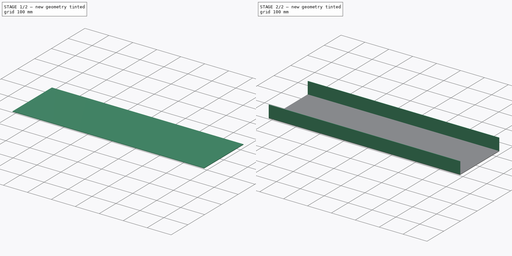
[diagram: build sequence overview — one tinted view per stage of 2, left to right]
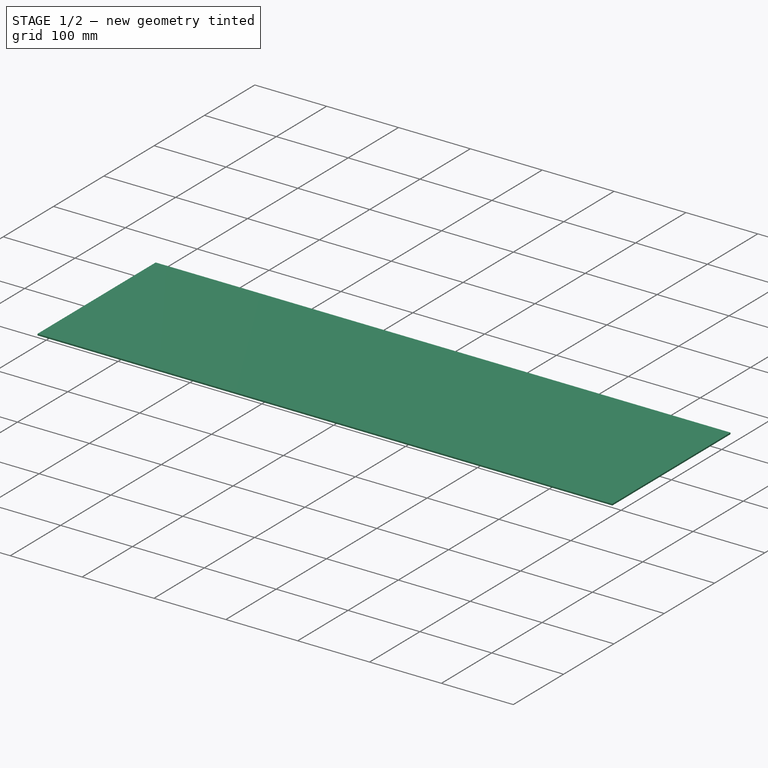
[diagram: stage 1 of 2 — iso view after this stage's code; geometry added in this stage tinted green]
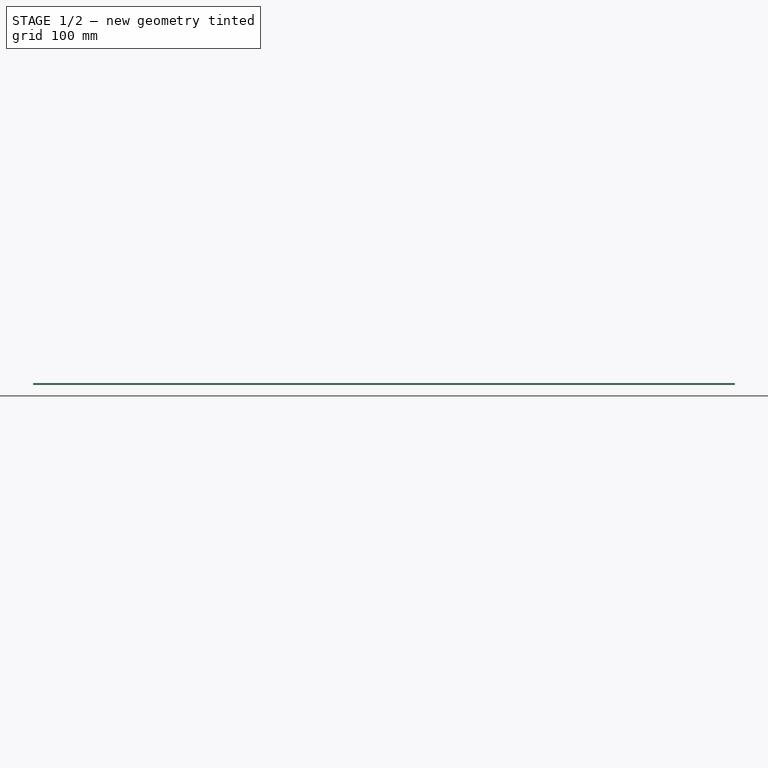
[diagram: stage 1 of 2 — front view after this stage's code; geometry added in this stage tinted green]
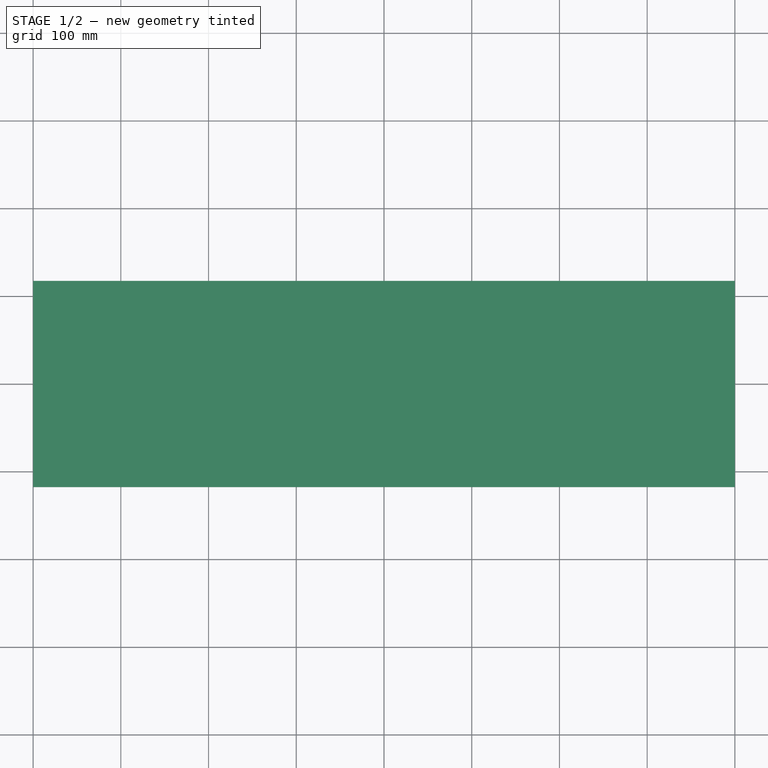
[diagram: stage 1 of 2 — top view after this stage's code; geometry added in this stage tinted green]
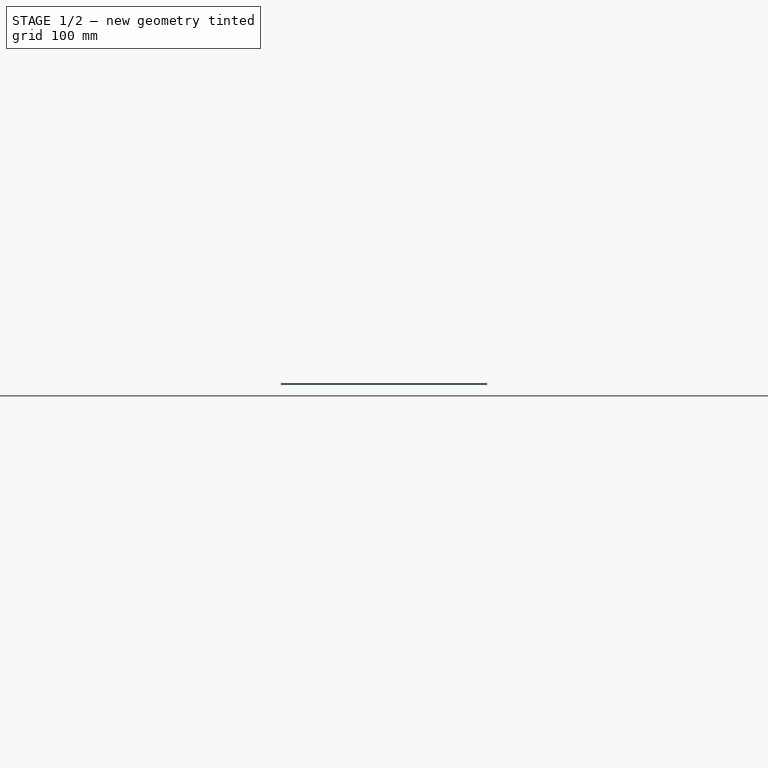
[diagram: stage 1 of 2 — right view after this stage's code; geometry added in this stage tinted green]
FCSTD DOCUMENT  (FreeCAD 0.20R29410 (Git))
Label: sling
License: All rights reserved
LicenseURL: http://en.wikipedia.org/wiki/All_rights_reserved
objects: Sketcher::SketchObject×2, PartDesign::Pad×2, PartDesign::Body×1
note: 7 computed .brp shape members not serialized (recipe doc carries the construction recipe); baked Part::Feature solids carry a one-line shape summary decoded from their .brp

FEATURE [Sketcher::SketchObject] Sketch
  FullyConstrained = true
  MapMode = 5
  Support = -> [XY_Plane]
  sketch-geometry (38):
    g0: LineSegment StartX=610 StartY=-487.5 StartZ=0 EndX=610 EndY=272.5 EndZ=0
    g1: LineSegment StartX=610 StartY=272.5 StartZ=0 EndX=-610 EndY=272.5 EndZ=0
    g2: LineSegment StartX=-610 StartY=272.5 StartZ=0 EndX=-610 EndY=-487.5 EndZ=0
    g3: LineSegment StartX=-610 StartY=-487.5 StartZ=0 EndX=610 EndY=-487.5 EndZ=0
    g4: GeomPoint X=0 Y=0 Z=0
    g5: LineSegment StartX=-550 StartY=67.5 StartZ=0 EndX=550 EndY=67.5 EndZ=0
    g6: LineSegment StartX=550 StartY=67.5 StartZ=0 EndX=550 EndY=-67.5 EndZ=0
    g7: LineSegment StartX=550 StartY=-67.5 StartZ=0 EndX=-550 EndY=-67.5 EndZ=0
    g8: LineSegment StartX=-550 StartY=-67.5 StartZ=0 EndX=-550 EndY=67.5 EndZ=0
    g9: GeomPoint X=0 Y=272.5 Z=0
    g10: LineSegment StartX=-400 StartY=117.5 StartZ=0 EndX=400 EndY=117.5 EndZ=0
    g11: LineSegment StartX=400 StartY=117.5 StartZ=0 EndX=400 EndY=-117.5 EndZ=0
    g12: LineSegment StartX=400 StartY=-117.5 StartZ=0 EndX=-400 EndY=-117.5 EndZ=0
    g13: LineSegment StartX=-400 StartY=-117.5 StartZ=0 EndX=-400 EndY=117.5 EndZ=0
    g14: LineSegment StartX=-400 StartY=-117.5 StartZ=0 EndX=400 EndY=-117.5 EndZ=0
    g15: LineSegment StartX=400 StartY=-117.5 StartZ=0 EndX=400 EndY=-167.5 EndZ=0
    g16: LineSegment StartX=400 StartY=-167.5 StartZ=0 EndX=-400 EndY=-167.5 EndZ=0
    g17: LineSegment StartX=-400 StartY=-167.5 StartZ=0 EndX=-400 EndY=-117.5 EndZ=0
    g18: LineSegment StartX=-400 StartY=167.5 StartZ=0 EndX=400 EndY=167.5 EndZ=0
    g19: LineSegment StartX=400 StartY=167.5 StartZ=0 EndX=400 EndY=117.5 EndZ=0
    g20: LineSegment StartX=400 StartY=117.5 StartZ=0 EndX=-400 EndY=117.5 EndZ=0
    g21: LineSegment StartX=-400 StartY=117.5 StartZ=0 EndX=-400 EndY=167.5 EndZ=0
    g22: LineSegment StartX=-400 StartY=-167.5 StartZ=0 EndX=400 EndY=-167.5 EndZ=0
    g23: LineSegment StartX=400 StartY=-167.5 StartZ=0 EndX=400 EndY=-192.5 EndZ=0
    g24: LineSegment StartX=400 StartY=-192.5 StartZ=0 EndX=-400 EndY=-192.5 EndZ=0
    g25: LineSegment StartX=-400 StartY=-192.5 StartZ=0 EndX=-400 EndY=-167.5 EndZ=0
    g26: LineSegment StartX=-400 StartY=192.5 StartZ=0 EndX=400 EndY=192.5 EndZ=0
    g27: LineSegment StartX=400 StartY=192.5 StartZ=0 EndX=400 EndY=167.5 EndZ=0
    g28: LineSegment StartX=400 StartY=167.5 StartZ=0 EndX=-400 EndY=167.5 EndZ=0
    g29: LineSegment StartX=-400 StartY=167.5 StartZ=0 EndX=-400 EndY=192.5 EndZ=0
    g30: LineSegment StartX=-412 StartY=192.5 StartZ=0 EndX=-400 EndY=192.5 EndZ=0
    g31: LineSegment StartX=-400 StartY=192.5 StartZ=0 EndX=-400 EndY=-192.5 EndZ=0
    g32: LineSegment StartX=-400 StartY=-192.5 StartZ=0 EndX=-412 EndY=-192.5 EndZ=0
    g33: LineSegment StartX=-412 StartY=-192.5 StartZ=0 EndX=-412 EndY=192.5 EndZ=0
    g34: LineSegment StartX=400 StartY=192.5 StartZ=0 EndX=412 EndY=192.5 EndZ=0
    g35: LineSegment StartX=412 StartY=192.5 StartZ=0 EndX=412 EndY=-192.5 EndZ=0
    g36: LineSegment StartX=412 StartY=-192.5 StartZ=0 EndX=400 EndY=-192.5 EndZ=0
    g37: LineSegment StartX=400 StartY=-192.5 StartZ=0 EndX=400 EndY=192.5 EndZ=0
  constraints (109):
    c: Coincident(g0,g1)
    c: Coincident(g1,g2)
    c: Coincident(g2,g3)
    c: Coincident(g3,g0)
    c: Horizontal(g1)
    c: Horizontal(g3)
    c: Vertical(g0)
    c: Vertical(g2)
    c: Coincident(g4,g-1)
    c: DistanceX(g1,g1) = 1220
    c: DistanceY(g2,g2) = 760
    c: Coincident(g5,g6)
    c: Coincident(g6,g7)
    c: Coincident(g7,g8)
    c: Coincident(g8,g5)
    c: Horizontal(g5)
    c: Horizontal(g7)
    c: Vertical(g6)
    c: Vertical(g8)
    c: DistanceY(g5,g1) = 205
    c: DistanceY(g8,g8) = 135
    c: DistanceX(g5,g5) = 1100
    c: Symmetric(g5,g6,g4)
    c: Symmetric(g1,g0,g9)
    c: Vertical(g9,g4)
    c: Coincident(g10,g11)
    c: Coincident(g11,g12)
    c: Coincident(g12,g13)
    c: Coincident(g13,g10)
    c: Horizontal(g10)
    c: Horizontal(g12)
    c: Vertical(g11)
    c: Vertical(g13)
    c: Symmetric(g12,g10,g4)
    c: DistanceY(g12,g7) = 50
    c: DistanceX(g5,g10) = 150
    c: DistanceX(g12,g11) = 800
    c: DistanceY(g11,g10) = 235
    c: Coincident(g14,g15)
    c: Coincident(g15,g16)
    c: Coincident(g16,g17)
    c: Coincident(g17,g14)
    c: Horizontal(g14)
    c: Horizontal(g16)
    c: Vertical(g15)
    c: Vertical(g17)
    c: Coincident(g14,g12)
    c: PointOnObject(g14,g11)
    c: DistanceY(g15,g11) = 50
    c: Coincident(g18,g19)
    c: Coincident(g19,g20)
    c: Coincident(g20,g21)
    c: Coincident(g21,g18)
    c: Horizontal(g18)
    c: Horizontal(g20)
    c: Vertical(g19)
    c: Vertical(g21)
    c: Equal(g19,g15)
    c: Coincident(g20,g10)
    c: PointOnObject(g19,g11)
    c: DistanceY(g19,g19) = 50
    c: Coincident(g22,g23)
    c: Coincident(g23,g24)
    c: Coincident(g24,g25)
    c: Coincident(g25,g22)
    c: Horizontal(g22)
    c: Horizontal(g24)
    c: Vertical(g23)
    c: Vertical(g25)
    c: Coincident(g22,g16)
    c: PointOnObject(g22,g15)
    c: DistanceY(g23,g15) = 25
    c: Coincident(g26,g27)
    c: Coincident(g27,g28)
    c: Coincident(g28,g29)
    c: Coincident(g29,g26)
    c: Horizontal(g26)
    c: Horizontal(g28)
    c: Vertical(g27)
    c: Vertical(g29)
    c: Coincident(g28,g18)
    c: PointOnObject(g27,g19)
    c: Equal(g27,g23)
    c: DistanceY(g27,g27) = 25
    c: DistanceY(g23,g26) = 385
    c: DistanceY(g10,g1) = 155
    c: Coincident(g30,g31)
    c: Coincident(g31,g32)
    c: Coincident(g32,g33)
    c: Coincident(g33,g30)
    c: Horizontal(g30)
    c: Horizontal(g32)
    c: Vertical(g31)
    c: Vertical(g33)
    c: Coincident(g30,g26)
    c: PointOnObject(g31,g24)
    c: DistanceX(g32,g24) = 12
    c: Coincident(g34,g35)
    c: Coincident(g35,g36)
    c: Coincident(g36,g37)
    c: Coincident(g37,g34)
    c: Horizontal(g34)
    c: Horizontal(g36)
    c: Vertical(g35)
    c: Vertical(g37)
    c: Coincident(g34,g26)
    c: PointOnObject(g36,g24)
    c: DistanceX(g23,g35) = 12
    c: DistanceX(g32,g35) = 824
FEATURE [PartDesign::Pad] Pad
  Direction = (0,0,1)
  Length = 2
  Length2 = 10
  Profile = -> Sketch
  ReferenceAxis = -> Sketch [N_Axis]
  Type = 0
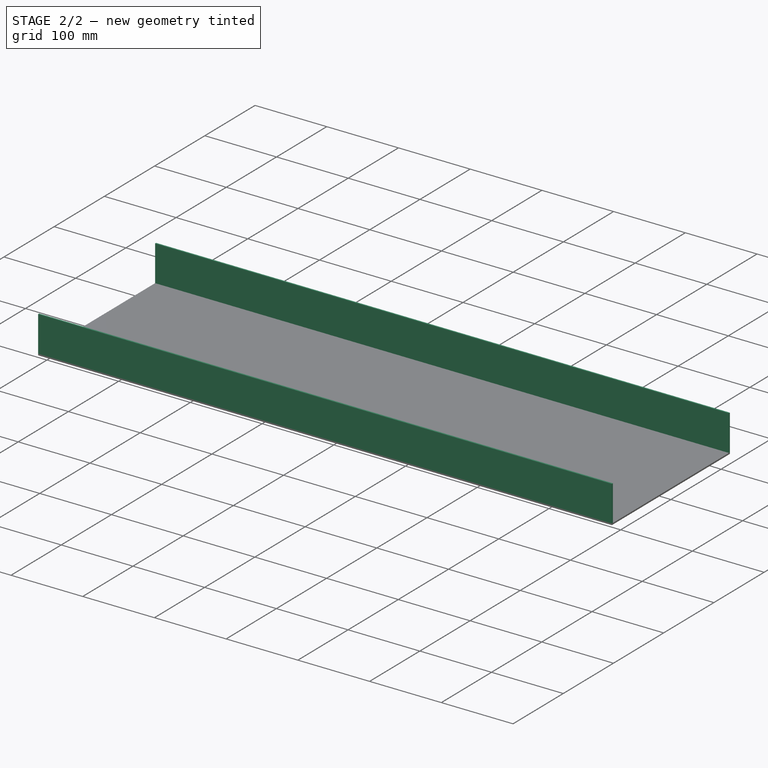
[diagram: stage 2 of 2 — iso view after this stage's code; geometry added in this stage tinted green]
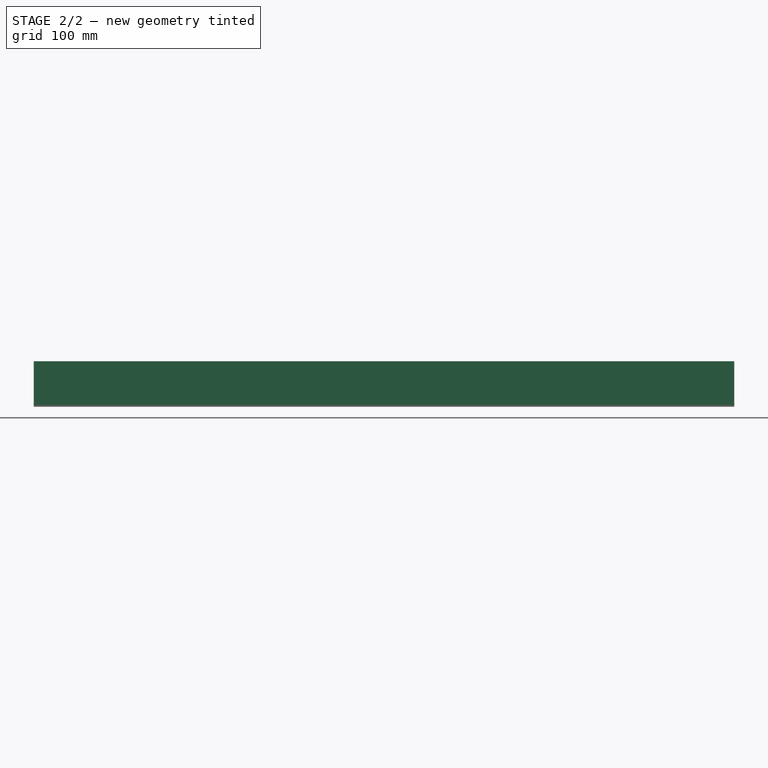
[diagram: stage 2 of 2 — front view after this stage's code; geometry added in this stage tinted green]
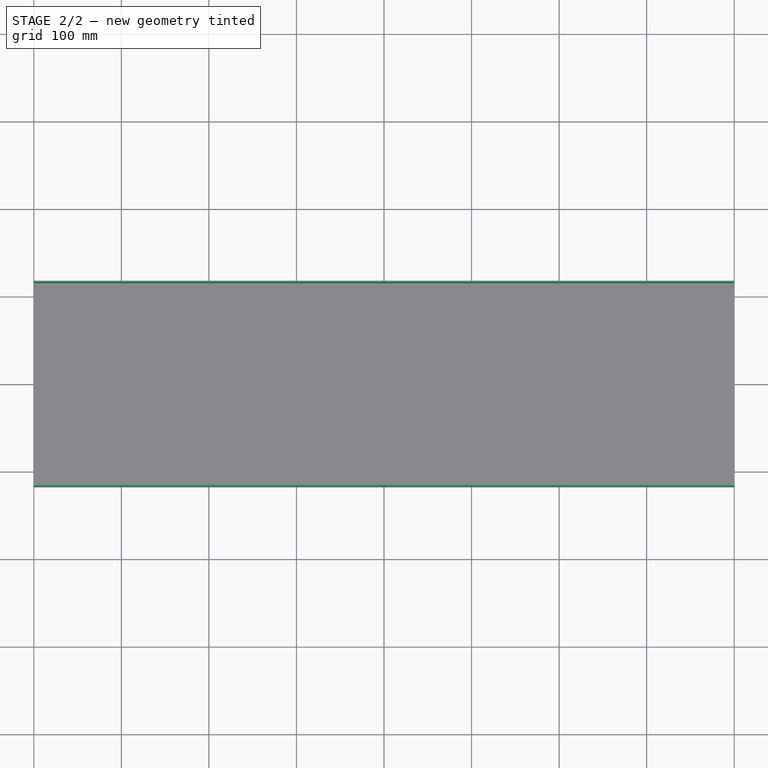
[diagram: stage 2 of 2 — top view after this stage's code; geometry added in this stage tinted green]
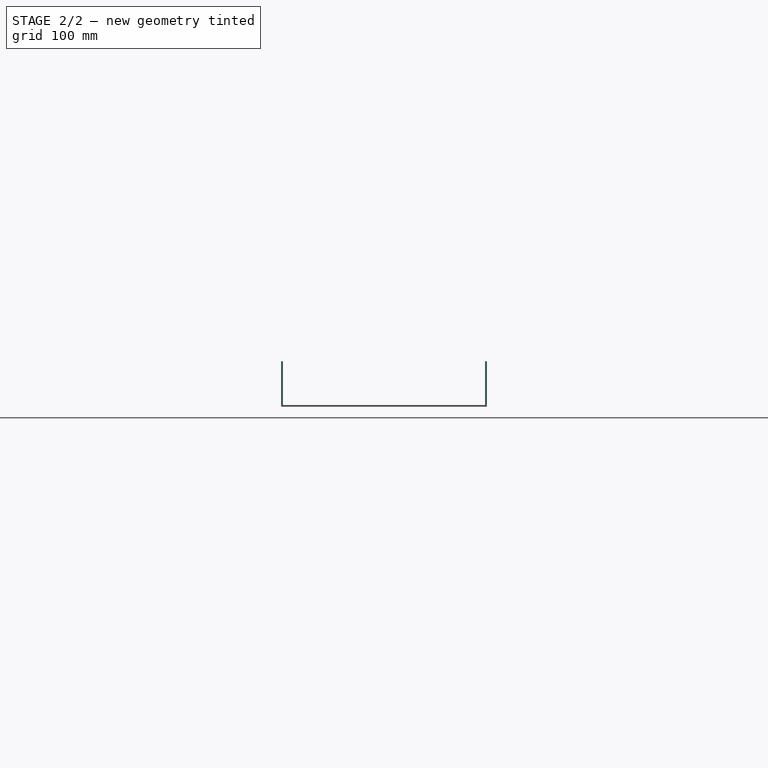
[diagram: stage 2 of 2 — right view after this stage's code; geometry added in this stage tinted green]
FEATURE [Sketcher::SketchObject] Sketch001
  ExternalGeometry = -> [Pad]
  FullyConstrained = true
  MapMode = 5
  Placement = pos=(0,0,2) rot=(0,0,1;0rad)
  Support = -> [Pad]
  sketch-geometry (8):
    g0: LineSegment StartX=-400 StartY=117.5 StartZ=0 EndX=400 EndY=117.5 EndZ=0
    g1: LineSegment StartX=400 StartY=117.5 StartZ=0 EndX=400 EndY=115.5 EndZ=0
    g2: LineSegment StartX=400 StartY=115.5 StartZ=0 EndX=-400 EndY=115.5 EndZ=0
    g3: LineSegment StartX=-400 StartY=115.5 StartZ=0 EndX=-400 EndY=117.5 EndZ=0
    g4: LineSegment StartX=-400 StartY=-117.5 StartZ=0 EndX=400 EndY=-117.5 EndZ=0
    g5: LineSegment StartX=400 StartY=-117.5 StartZ=0 EndX=400 EndY=-115.5 EndZ=0
    g6: LineSegment StartX=400 StartY=-115.5 StartZ=0 EndX=-400 EndY=-115.5 EndZ=0
    g7: LineSegment StartX=-400 StartY=-115.5 StartZ=0 EndX=-400 EndY=-117.5 EndZ=0
  constraints (22):
    c: Coincident(g0,g1)
    c: Coincident(g1,g2)
    c: Coincident(g2,g3)
    c: Coincident(g3,g0)
    c: Horizontal(g0)
    c: Horizontal(g2)
    c: Vertical(g1)
    c: Vertical(g3)
    c: Coincident(g0,g-4)
    c: PointOnObject(g1,g-6)
    c: Coincident(g4,g5)
    c: Coincident(g5,g6)
    c: Coincident(g6,g7)
    c: Coincident(g7,g4)
    c: Horizontal(g4)
    c: Horizontal(g6)
    c: Vertical(g5)
    c: Vertical(g7)
    c: Coincident(g4,g-5)
    c: PointOnObject(g5,g-6)
    c: Equal(g3,g7)
    c: DistanceY(g3,g3) = 2
FEATURE [PartDesign::Pad] Pad001
  BaseFeature = -> Pad
  Direction = (0,0,1)
  Length = 50
  Length2 = 10
  Profile = -> Sketch001
  ReferenceAxis = -> Sketch001 [N_Axis]
  Type = 0
FEATURE [PartDesign::Body] Body
  Group = -> [Sketch,Pad,Sketch001,Pad001]
  Origin = -> Origin
  Tip = -> Pad001
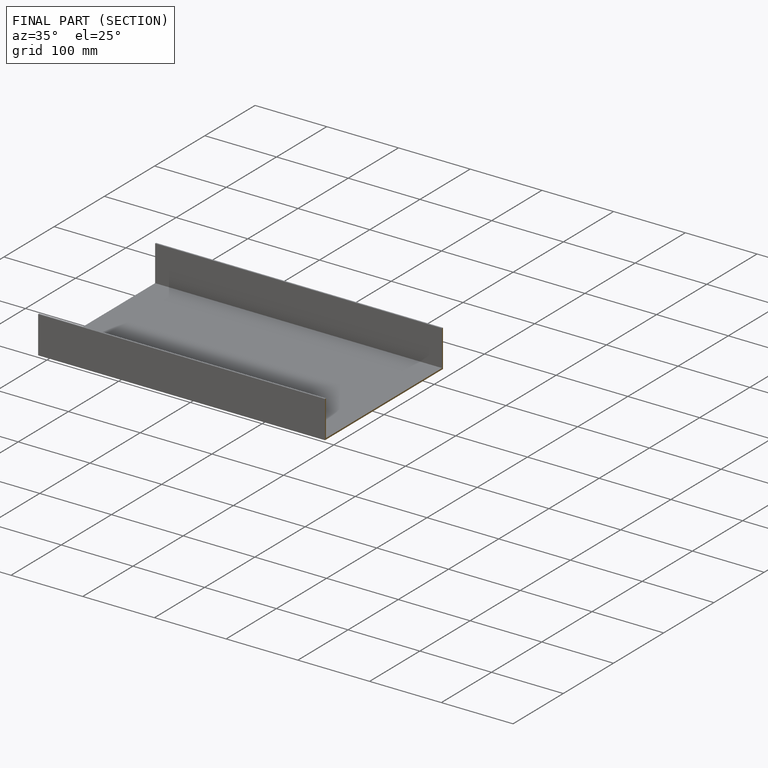
[diagram: finished part — half-section view (interior)]
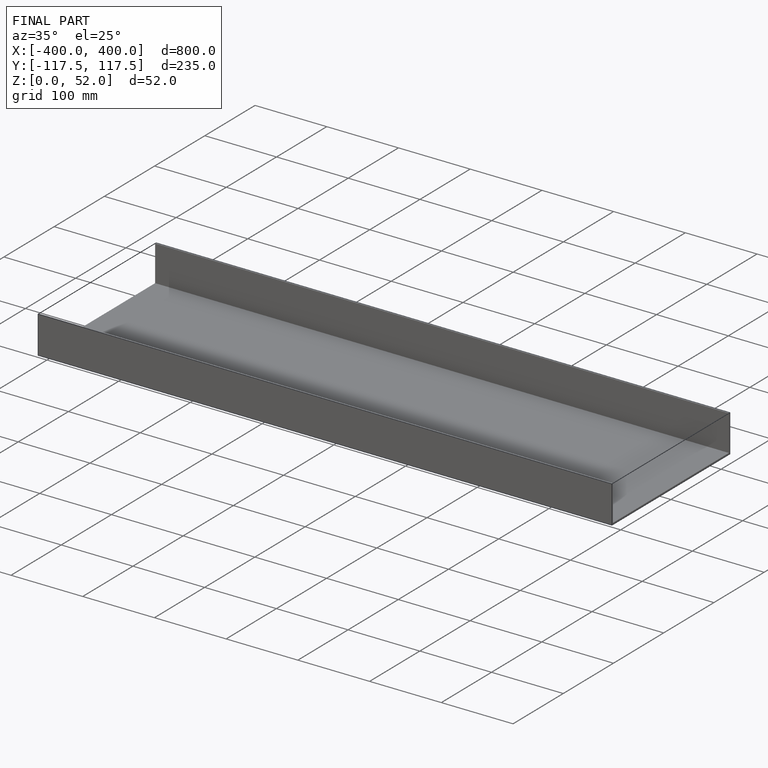
[diagram: finished part — iso view with bounding-box wireframe]
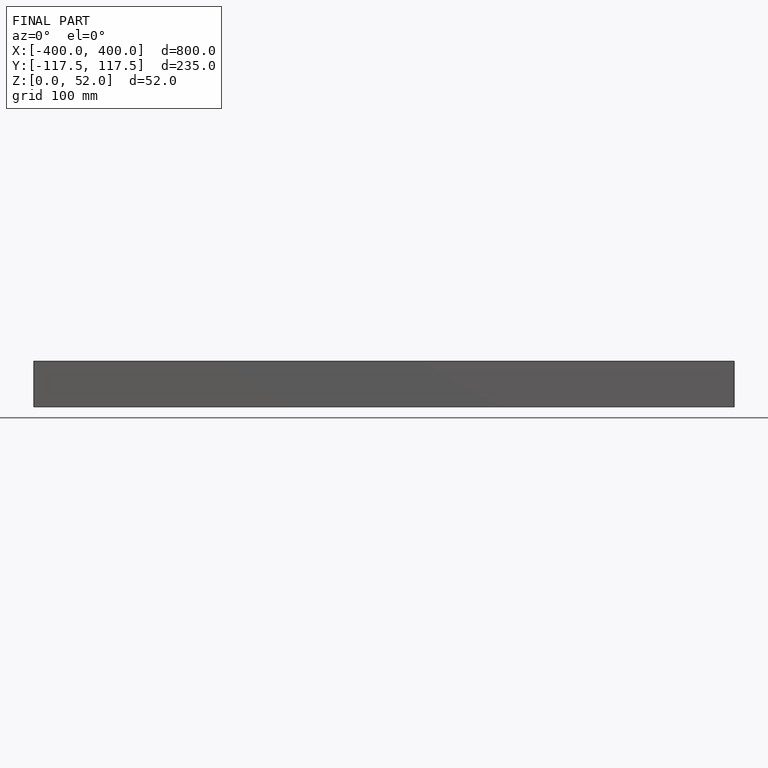
[diagram: finished part — front view with bounding-box wireframe]
